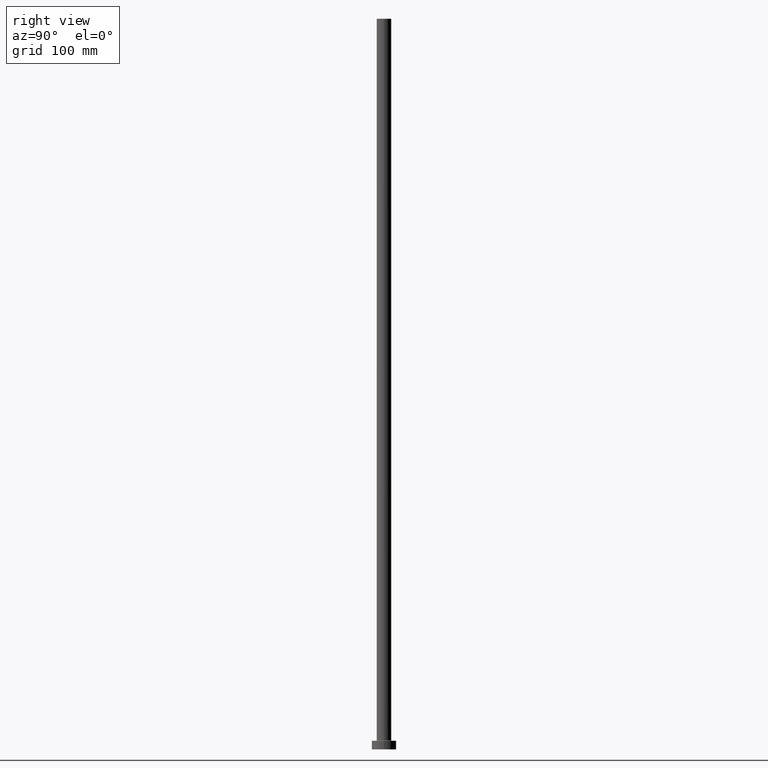
[diagram: clean part render]
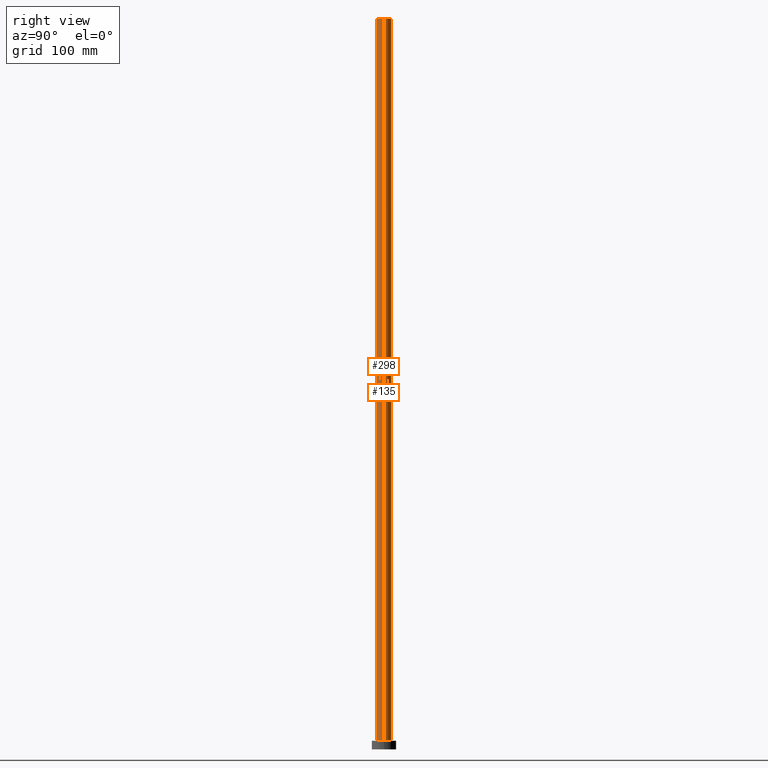
[diagram: same view with one multi-face feature highlighted, each face labeled with its STEP entity id]
A machine part, right view. The highlighted faces form ONE feature: a constant-radius fillet chain: 2 tangent blend faces with common blend radius 6 mm. The faces share edges in the B-rep.
Their STEP definitions:
[1] entity #135 (Cylinder):
#10 = FACE_OUTER_BOUND ( 'NONE', #16, .T. ) ;
#14 = VERTEX_POINT ( 'NONE', #62 ) ;
#16 = EDGE_LOOP ( 'NONE', ( #242, #39, #455, #109 ) ) ;
#39 = ORIENTED_EDGE ( 'NONE', *, *, #280, .T. ) ;
#40 = CARTESIAN_POINT ( 'NONE',  ( 0.000000000000000000, 0.000000000000000000, 600.0000000000000000 ) ) ;
#51 = LINE ( 'NONE', #83, #452 ) ;
#62 = CARTESIAN_POINT ( 'NONE',  ( -6.000000000000000888, 0.000000000000000000, 600.0000000000000000 ) ) ;
#68 = EDGE_CURVE ( 'NONE', #160, #330, #423, .T. ) ;
#69 = DIRECTION ( 'NONE',  ( 1.000000000000000000, 0.000000000000000000, 0.000000000000000000 ) ) ;
#71 = DIRECTION ( 'NONE',  ( -0.000000000000000000, -0.000000000000000000, -1.000000000000000000 ) ) ;
#83 = CARTESIAN_POINT ( 'NONE',  ( -6.000000000000000888, 0.000000000000000000, 600.0000000000000000 ) ) ;
#109 = ORIENTED_EDGE ( 'NONE', *, *, #204, .F. ) ;
#122 = CARTESIAN_POINT ( 'NONE',  ( 6.000000000000000888, 7.347880794884120722E-16, 600.0000000000000000 ) ) ;
#135 = ADVANCED_FACE ( 'NONE', ( #10 ), #150, .T. ) ;
#140 = LINE ( 'NONE', #320, #382 ) ;
#145 = DIRECTION ( 'NONE',  ( 0.000000000000000000, 0.000000000000000000, 1.000000000000000000 ) ) ;
#150 = CYLINDRICAL_SURFACE ( 'NONE', #224, 6.000000000000000888 ) ;
#160 = VERTEX_POINT ( 'NONE', #329 ) ;
#161 = DIRECTION ( 'NONE',  ( 1.000000000000000000, 0.000000000000000000, 0.000000000000000000 ) ) ;
#204 = EDGE_CURVE ( 'NONE', #14, #330, #51, .T. ) ;
#223 = DIRECTION ( 'NONE',  ( -0.000000000000000000, -0.000000000000000000, -1.000000000000000000 ) ) ;
#224 = AXIS2_PLACEMENT_3D ( 'NONE', #323, #294, #263 ) ;
#235 = DIRECTION ( 'NONE',  ( 0.000000000000000000, 0.000000000000000000, 1.000000000000000000 ) ) ;
#242 = ORIENTED_EDGE ( 'NONE', *, *, #417, .F. ) ;
#263 = DIRECTION ( 'NONE',  ( -1.000000000000000000, 0.000000000000000000, 0.000000000000000000 ) ) ;
#268 = VERTEX_POINT ( 'NONE', #122 ) ;
#270 = CARTESIAN_POINT ( 'NONE',  ( 0.000000000000000000, 0.000000000000000000, 7.499999999999951150 ) ) ;
#280 = EDGE_CURVE ( 'NONE', #268, #160, #140, .T. ) ;
#284 = CARTESIAN_POINT ( 'NONE',  ( -6.000000000000000888, 0.000000000000000000, 7.499999999999951150 ) ) ;
#293 = AXIS2_PLACEMENT_3D ( 'NONE', #270, #235, #161 ) ;
#294 = DIRECTION ( 'NONE',  ( -0.000000000000000000, -0.000000000000000000, -1.000000000000000000 ) ) ;
#320 = CARTESIAN_POINT ( 'NONE',  ( 6.000000000000000888, 7.347880794884120722E-16, 600.0000000000000000 ) ) ;
#323 = CARTESIAN_POINT ( 'NONE',  ( 0.000000000000000000, 0.000000000000000000, 600.0000000000000000 ) ) ;
#329 = CARTESIAN_POINT ( 'NONE',  ( 6.000000000000000888, 7.347880794884120722E-16, 7.499999999999951150 ) ) ;
#330 = VERTEX_POINT ( 'NONE', #284 ) ;
#382 = VECTOR ( 'NONE', #71, 1000.000000000000000 ) ;
#417 = EDGE_CURVE ( 'NONE', #268, #14, #418, .T. ) ;
#418 = CIRCLE ( 'NONE', #459, 6.000000000000000888 ) ;
#423 = CIRCLE ( 'NONE', #293, 6.000000000000000888 ) ;
#452 = VECTOR ( 'NONE', #223, 1000.000000000000000 ) ;
#455 = ORIENTED_EDGE ( 'NONE', *, *, #68, .T. ) ;
#459 = AXIS2_PLACEMENT_3D ( 'NONE', #40, #145, #69 ) ;
[2] entity #298 (Cylinder):
#14 = VERTEX_POINT ( 'NONE', #62 ) ;
#28 = DIRECTION ( 'NONE',  ( 1.000000000000000000, 0.000000000000000000, 0.000000000000000000 ) ) ;
#33 = EDGE_CURVE ( 'NONE', #330, #160, #384, .T. ) ;
#43 = DIRECTION ( 'NONE',  ( -1.000000000000000000, 0.000000000000000000, 0.000000000000000000 ) ) ;
#51 = LINE ( 'NONE', #83, #452 ) ;
#62 = CARTESIAN_POINT ( 'NONE',  ( -6.000000000000000888, 0.000000000000000000, 600.0000000000000000 ) ) ;
#71 = DIRECTION ( 'NONE',  ( -0.000000000000000000, -0.000000000000000000, -1.000000000000000000 ) ) ;
#78 = CYLINDRICAL_SURFACE ( 'NONE', #203, 6.000000000000000888 ) ;
#83 = CARTESIAN_POINT ( 'NONE',  ( -6.000000000000000888, 0.000000000000000000, 600.0000000000000000 ) ) ;
#93 = CARTESIAN_POINT ( 'NONE',  ( 0.000000000000000000, 0.000000000000000000, 7.499999999999951150 ) ) ;
#122 = CARTESIAN_POINT ( 'NONE',  ( 6.000000000000000888, 7.347880794884120722E-16, 600.0000000000000000 ) ) ;
#140 = LINE ( 'NONE', #320, #382 ) ;
#158 = ORIENTED_EDGE ( 'NONE', *, *, #280, .F. ) ;
#160 = VERTEX_POINT ( 'NONE', #329 ) ;
#172 = AXIS2_PLACEMENT_3D ( 'NONE', #93, #310, #28 ) ;
#175 = CARTESIAN_POINT ( 'NONE',  ( 0.000000000000000000, 0.000000000000000000, 600.0000000000000000 ) ) ;
#182 = CARTESIAN_POINT ( 'NONE',  ( 0.000000000000000000, 0.000000000000000000, 600.0000000000000000 ) ) ;
#203 = AXIS2_PLACEMENT_3D ( 'NONE', #175, #457, #43 ) ;
#204 = EDGE_CURVE ( 'NONE', #14, #330, #51, .T. ) ;
#223 = DIRECTION ( 'NONE',  ( -0.000000000000000000, -0.000000000000000000, -1.000000000000000000 ) ) ;
#261 = EDGE_CURVE ( 'NONE', #14, #268, #409, .T. ) ;
#268 = VERTEX_POINT ( 'NONE', #122 ) ;
#280 = EDGE_CURVE ( 'NONE', #268, #160, #140, .T. ) ;
#284 = CARTESIAN_POINT ( 'NONE',  ( -6.000000000000000888, 0.000000000000000000, 7.499999999999951150 ) ) ;
#289 = FACE_OUTER_BOUND ( 'NONE', #444, .T. ) ;
#296 = DIRECTION ( 'NONE',  ( 0.000000000000000000, 0.000000000000000000, 1.000000000000000000 ) ) ;
#298 = ADVANCED_FACE ( 'NONE', ( #289 ), #78, .T. ) ;
#309 = AXIS2_PLACEMENT_3D ( 'NONE', #182, #296, #364 ) ;
#310 = DIRECTION ( 'NONE',  ( 0.000000000000000000, 0.000000000000000000, 1.000000000000000000 ) ) ;
#320 = CARTESIAN_POINT ( 'NONE',  ( 6.000000000000000888, 7.347880794884120722E-16, 600.0000000000000000 ) ) ;
#329 = CARTESIAN_POINT ( 'NONE',  ( 6.000000000000000888, 7.347880794884120722E-16, 7.499999999999951150 ) ) ;
#330 = VERTEX_POINT ( 'NONE', #284 ) ;
#332 = ORIENTED_EDGE ( 'NONE', *, *, #204, .T. ) ;
#364 = DIRECTION ( 'NONE',  ( 1.000000000000000000, 0.000000000000000000, 0.000000000000000000 ) ) ;
#367 = ORIENTED_EDGE ( 'NONE', *, *, #33, .T. ) ;
#382 = VECTOR ( 'NONE', #71, 1000.000000000000000 ) ;
#384 = CIRCLE ( 'NONE', #172, 6.000000000000000888 ) ;
#404 = ORIENTED_EDGE ( 'NONE', *, *, #261, .F. ) ;
#409 = CIRCLE ( 'NONE', #309, 6.000000000000000888 ) ;
#444 = EDGE_LOOP ( 'NONE', ( #158, #404, #332, #367 ) ) ;
#452 = VECTOR ( 'NONE', #223, 1000.000000000000000 ) ;
#457 = DIRECTION ( 'NONE',  ( -0.000000000000000000, -0.000000000000000000, -1.000000000000000000 ) ) ;